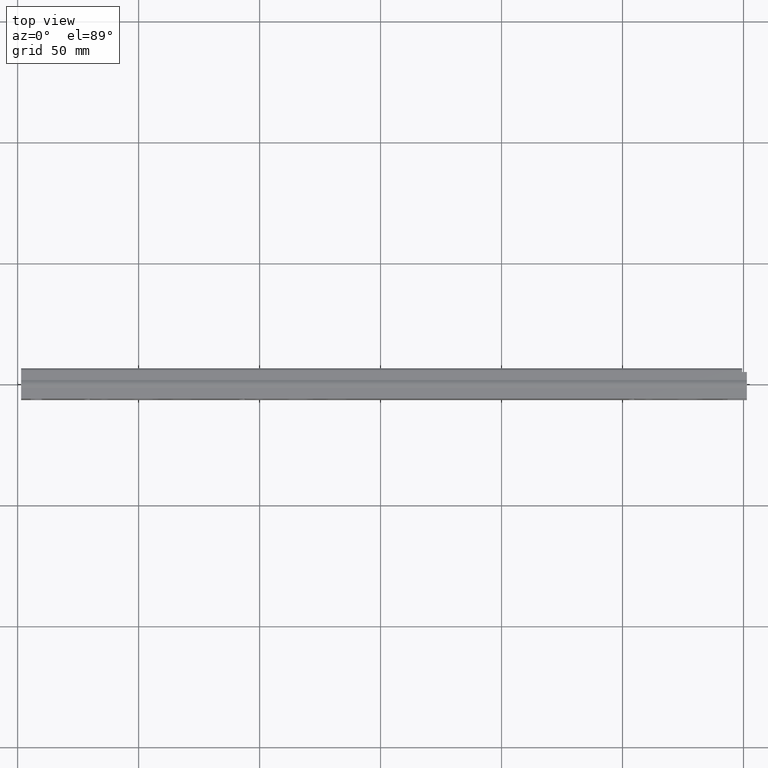
[diagram: clean part render]
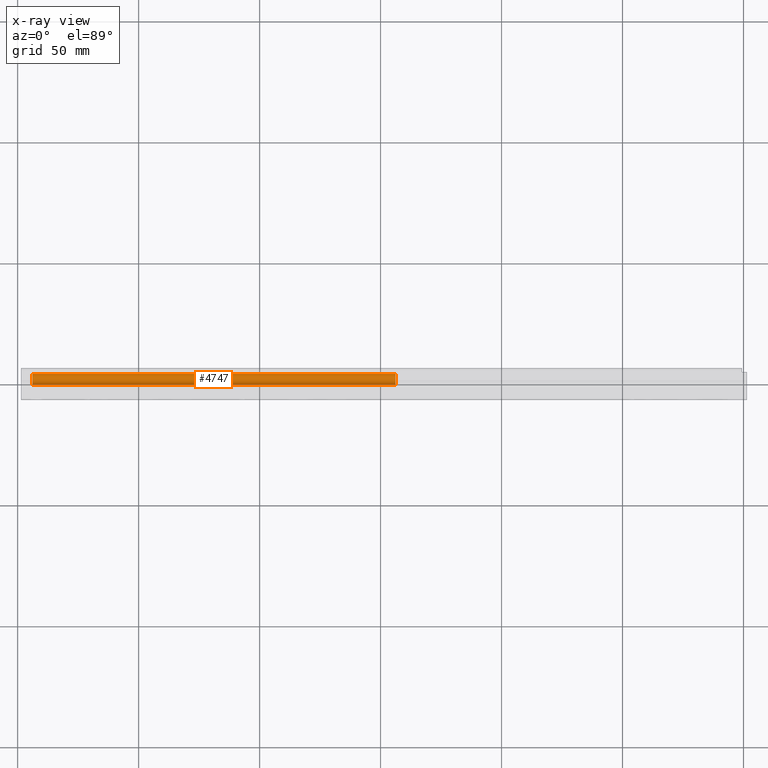
[diagram: x-ray — body ghosted, one internal face saturated and labeled with its STEP entity id]
A machine part, top view, then the same camera in x-ray: the body is ghosted and one INTERNAL B-rep face — a face not visible from any outside direction — is saturated and labeled: STEP entity #4747.
In plain terms, the highlighted cylindrical surface (edge-blend (fillet) strip) has radius 2.25 mm, axis along (1, -0, 0).
Its self-contained STEP definition (entity closure, byte-faithful):
#140=CYLINDRICAL_SURFACE('',#5172,2.25);
#422=FACE_OUTER_BOUND('',#726,.T.);
#726=EDGE_LOOP('',(#4240,#4241,#4242,#4243));
#1178=LINE('',#7796,#1668);
#1179=LINE('',#7800,#1669);
#1668=VECTOR('',#6426,150.);
#1669=VECTOR('',#6429,150.);
#1906=CIRCLE('',#5173,2.25);
#1907=CIRCLE('',#5174,2.25);
#2320=VERTEX_POINT('',#7794);
#2321=VERTEX_POINT('',#7795);
#2322=VERTEX_POINT('',#7797);
#2323=VERTEX_POINT('',#7799);
#2968=EDGE_CURVE('',#2320,#2321,#1178,.T.);
#2969=EDGE_CURVE('',#2322,#2320,#1906,.T.);
#2970=EDGE_CURVE('',#2323,#2322,#1179,.T.);
#2971=EDGE_CURVE('',#2321,#2323,#1907,.T.);
#4240=ORIENTED_EDGE('',*,*,#2968,.F.);
#4241=ORIENTED_EDGE('',*,*,#2969,.F.);
#4242=ORIENTED_EDGE('',*,*,#2970,.F.);
#4243=ORIENTED_EDGE('',*,*,#2971,.F.);
#4747=ADVANCED_FACE('',(#422),#140,.T.);
#5172=AXIS2_PLACEMENT_3D('',#7793,#6424,#6425);
#5173=AXIS2_PLACEMENT_3D('',#7798,#6427,#6428);
#5174=AXIS2_PLACEMENT_3D('',#7801,#6430,#6431);
#6424=DIRECTION('center_axis',(1.,0.,0.));
#6425=DIRECTION('ref_axis',(0.,-0.577777777777777,-0.816194118764754));
#6426=DIRECTION('',(1.,0.,0.));
#6427=DIRECTION('center_axis',(-1.,0.,0.));
#6428=DIRECTION('ref_axis',(0.,1.,0.));
#6429=DIRECTION('',(-1.,0.,0.));
#6430=DIRECTION('center_axis',(1.,0.,0.));
#6431=DIRECTION('ref_axis',(0.,-0.577777777777777,-0.816194118764754));
#7793=CARTESIAN_POINT('Origin',(0.,8.09999999999999,9.4));
#7794=CARTESIAN_POINT('',(-75.,5.8589065168985,9.2));
#7795=CARTESIAN_POINT('',(75.,5.8589065168985,9.2));
#7796=CARTESIAN_POINT('',(0.,5.8589065168985,9.2));
#7797=CARTESIAN_POINT('',(-75.,10.3410934831015,9.2));
#7798=CARTESIAN_POINT('Origin',(-75.,8.1,9.4));
#7799=CARTESIAN_POINT('',(75.,10.3410934831015,9.2));
#7800=CARTESIAN_POINT('',(0.,10.3410934831015,9.2));
#7801=CARTESIAN_POINT('Origin',(75.,8.09999999999999,9.4));